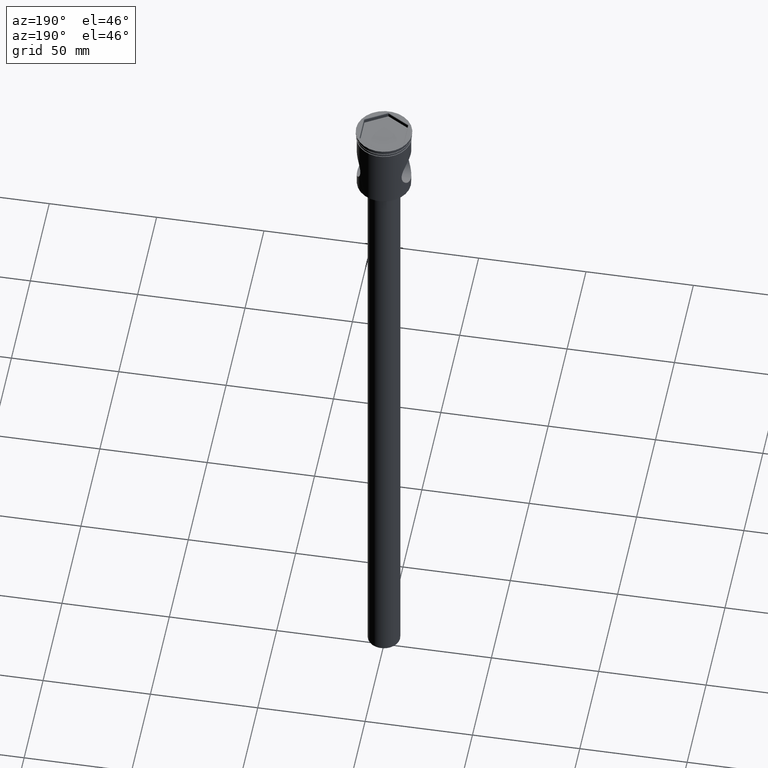
[diagram: clean part render]
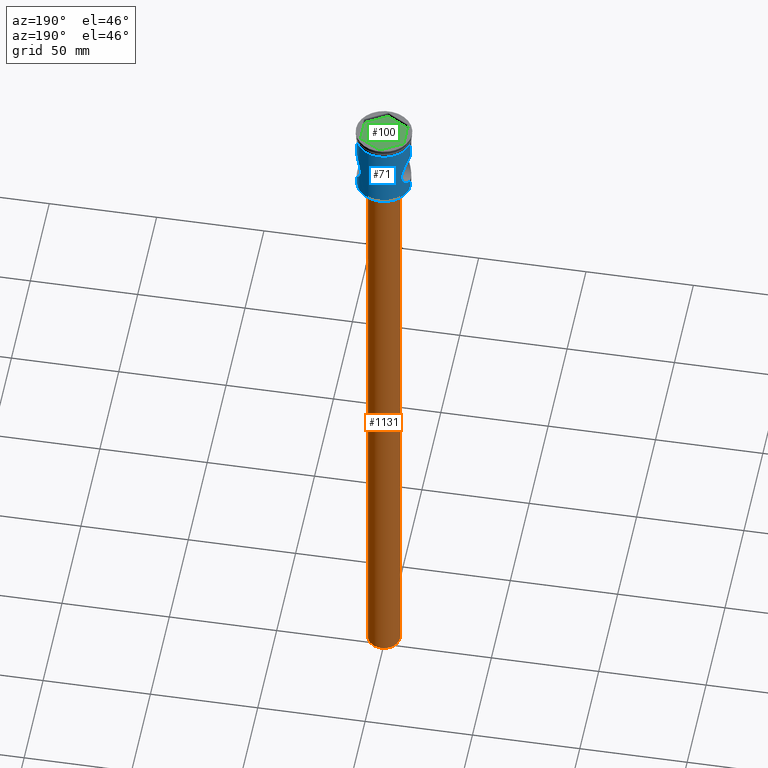
[diagram: same view with three faces highlighted in distinct colors, each labeled with its STEP entity id]
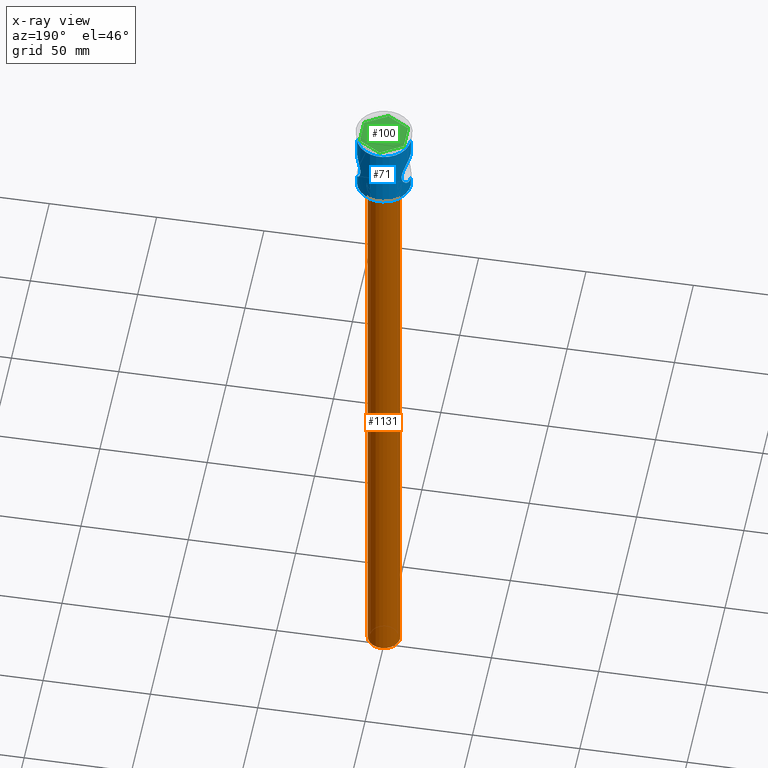
[diagram: x-ray of the same camera — body ghosted, the three highlighted faces saturated]
A machine part, auxiliary view with three faces highlighted in distinct colors.
The next image is the same camera in x-ray (body ghosted, the three faces saturated) — at least one of them is partly hidden behind the body in this view.
Their STEP definitions:

[orange] entity #1131 — the highlighted cylindrical surface (edge-blend (fillet) strip) has radius 7.5 mm, axis along (-0, -0, 1).
#34 = CYLINDRICAL_SURFACE ( 'NONE', #744, 7.500000000000000000 ) ;
#82 = CARTESIAN_POINT ( 'NONE',  ( 7.500000000000000000, 0.000000000000000000, -333.5000000000000000 ) ) ;
#125 = DIRECTION ( 'NONE',  ( -1.000000000000000000, 0.000000000000000000, 0.000000000000000000 ) ) ;
#140 = CARTESIAN_POINT ( 'NONE',  ( -7.500000000000000000, 9.184850993605147944E-16, -333.5000000000000000 ) ) ;
#146 = FACE_OUTER_BOUND ( 'NONE', #1021, .T. ) ;
#152 = LINE ( 'NONE', #403, #370 ) ;
#201 = LINE ( 'NONE', #82, #1546 ) ;
#370 = VECTOR ( 'NONE', #1352, 1000.000000000000000 ) ;
#403 = CARTESIAN_POINT ( 'NONE',  ( -7.500000000000000000, 9.184850993605147944E-16, -333.5000000000000000 ) ) ;
#440 = EDGE_CURVE ( 'NONE', #910, #1409, #452, .T. ) ;
#452 = CIRCLE ( 'NONE', #496, 7.500000000000000000 ) ;
#496 = AXIS2_PLACEMENT_3D ( 'NONE', #1257, #884, #1496 ) ;
#527 = ORIENTED_EDGE ( 'NONE', *, *, #1397, .T. ) ;
#641 = CARTESIAN_POINT ( 'NONE',  ( 7.500000000000000000, 0.000000000000000000, -333.5000000000000000 ) ) ;
#661 = CIRCLE ( 'NONE', #1484, 7.500000000000000000 ) ;
#687 = ORIENTED_EDGE ( 'NONE', *, *, #440, .F. ) ;
#744 = AXIS2_PLACEMENT_3D ( 'NONE', #986, #747, #867 ) ;
#747 = DIRECTION ( 'NONE',  ( -0.000000000000000000, -0.000000000000000000, 1.000000000000000000 ) ) ;
#828 = EDGE_CURVE ( 'NONE', #910, #1551, #152, .T. ) ;
#867 = DIRECTION ( 'NONE',  ( 1.000000000000000000, 0.000000000000000000, 0.000000000000000000 ) ) ;
#884 = DIRECTION ( 'NONE',  ( 0.000000000000000000, 0.000000000000000000, -1.000000000000000000 ) ) ;
#910 = VERTEX_POINT ( 'NONE', #140 ) ;
#986 = CARTESIAN_POINT ( 'NONE',  ( 0.000000000000000000, 0.000000000000000000, -333.5000000000000000 ) ) ;
#1004 = VERTEX_POINT ( 'NONE', #1506 ) ;
#1021 = EDGE_LOOP ( 'NONE', ( #687, #1198, #527, #1184 ) ) ;
#1060 = CARTESIAN_POINT ( 'NONE',  ( 0.000000000000000000, 0.000000000000000000, -36.50000000000000711 ) ) ;
#1131 = ADVANCED_FACE ( 'NONE', ( #146 ), #34, .T. ) ;
#1172 = CARTESIAN_POINT ( 'NONE',  ( -7.500000000000000000, 9.184850993605147944E-16, -36.50000000000000711 ) ) ;
#1184 = ORIENTED_EDGE ( 'NONE', *, *, #1359, .F. ) ;
#1195 = DIRECTION ( 'NONE',  ( 0.000000000000000000, 0.000000000000000000, -1.000000000000000000 ) ) ;
#1198 = ORIENTED_EDGE ( 'NONE', *, *, #828, .T. ) ;
#1257 = CARTESIAN_POINT ( 'NONE',  ( 0.000000000000000000, 0.000000000000000000, -333.5000000000000000 ) ) ;
#1292 = DIRECTION ( 'NONE',  ( -0.000000000000000000, -0.000000000000000000, 1.000000000000000000 ) ) ;
#1352 = DIRECTION ( 'NONE',  ( -0.000000000000000000, -0.000000000000000000, 1.000000000000000000 ) ) ;
#1359 = EDGE_CURVE ( 'NONE', #1409, #1004, #201, .T. ) ;
#1397 = EDGE_CURVE ( 'NONE', #1551, #1004, #661, .T. ) ;
#1409 = VERTEX_POINT ( 'NONE', #641 ) ;
#1484 = AXIS2_PLACEMENT_3D ( 'NONE', #1060, #1195, #125 ) ;
#1496 = DIRECTION ( 'NONE',  ( -1.000000000000000000, 0.000000000000000000, 0.000000000000000000 ) ) ;
#1506 = CARTESIAN_POINT ( 'NONE',  ( 7.500000000000000000, 0.000000000000000000, -36.50000000000000711 ) ) ;
#1546 = VECTOR ( 'NONE', #1292, 1000.000000000000000 ) ;
#1551 = VERTEX_POINT ( 'NONE', #1172 ) ;

[blue] entity #71 — the highlighted cylindrical surface (edge-blend (fillet) strip) has radius 12.5 mm, axis along (-0, -0, 1).
#7 = CARTESIAN_POINT ( 'NONE',  ( -10.02253038761470982, 7.470924704462464483, -23.37288695449094433 ) ) ;
#70 = CARTESIAN_POINT ( 'NONE',  ( -11.49685725809058567, 4.911092195449596076, -14.17966420493785051 ) ) ;
#71 = ADVANCED_FACE ( 'NONE', ( #991 ), #733, .T. ) ;
#77 = CARTESIAN_POINT ( 'NONE',  ( -10.24171529436143402, 7.170737983946684935, -16.91536847051583692 ) ) ;
#83 = CARTESIAN_POINT ( 'NONE',  ( -9.604607193058786407, 8.000095042092121744, -20.76536489131949992 ) ) ;
#102 = CARTESIAN_POINT ( 'NONE',  ( -10.77171733329285530, 6.344673314144587017, -25.37958406506655251 ) ) ;
#109 = CARTESIAN_POINT ( 'NONE',  ( 12.49132987171840270, 0.5383245889663403894, -12.51352599534948418 ) ) ;
#119 = CARTESIAN_POINT ( 'NONE',  ( 9.650015180279874372, 7.946443617263751591, -19.43182631452544484 ) ) ;
#120 = CARTESIAN_POINT ( 'NONE',  ( 12.46447579769007774, 1.079199628273470157, -28.44481018307721243 ) ) ;
#122 = VERTEX_POINT ( 'NONE', #1120 ) ;
#124 = ORIENTED_EDGE ( 'NONE', *, *, #1267, .F. ) ;
#143 = DIRECTION ( 'NONE',  ( 1.000000000000000000, 0.000000000000000000, 0.000000000000000000 ) ) ;
#145 = ORIENTED_EDGE ( 'NONE', *, *, #644, .F. ) ;
#161 = CARTESIAN_POINT ( 'NONE',  ( 11.83084558445469980, 4.061114290533304860, -27.41204444593460821 ) ) ;
#163 = AXIS2_PLACEMENT_3D ( 'NONE', #1212, #1002, #143 ) ;
#166 = DIRECTION ( 'NONE',  ( -0.000000000000000000, -0.000000000000000000, 1.000000000000000000 ) ) ;
#195 = CARTESIAN_POINT ( 'NONE',  ( -10.76964293615448653, 6.354292206984882618, -15.61311065325000591 ) ) ;
#202 = CARTESIAN_POINT ( 'NONE',  ( -9.823930086259025529, 7.730428572254550268, -18.37155159375936719 ) ) ;
#205 = CARTESIAN_POINT ( 'NONE',  ( -12.32814927920563264, 2.133064077394900337, -12.77081634138414401 ) ) ;
#222 = DIRECTION ( 'NONE',  ( -0.000000000000000000, -0.000000000000000000, 1.000000000000000000 ) ) ;
#230 = LINE ( 'NONE', #1294, #911 ) ;
#258 = ORIENTED_EDGE ( 'NONE', *, *, #904, .F. ) ;
#262 = CARTESIAN_POINT ( 'NONE',  ( 9.951847861737379120, 7.567903109691757280, -23.14472692481474425 ) ) ;
#274 = AXIS2_PLACEMENT_3D ( 'NONE', #1387, #683, #390 ) ;
#277 = CARTESIAN_POINT ( 'NONE',  ( 12.49999999999999289, 0.5455086926773380362, -28.50000000000000000 ) ) ;
#318 = VECTOR ( 'NONE', #805, 1000.000000000000000 ) ;
#326 = LINE ( 'NONE', #483, #318 ) ;
#327 = CARTESIAN_POINT ( 'NONE',  ( -12.49999999999999822, 0.2686376769289312016, -12.50000000000000533 ) ) ;
#336 = CARTESIAN_POINT ( 'NONE',  ( -11.74602063590885059, 4.281685285502878635, -13.73737400827888422 ) ) ;
#341 = CARTESIAN_POINT ( 'NONE',  ( -12.49999999999999645, 0.000000000000000000, -28.50000000000000355 ) ) ;
#351 = CARTESIAN_POINT ( 'NONE',  ( -11.82492588981186543, 4.059453444830931623, -27.39848256787114167 ) ) ;
#361 = EDGE_CURVE ( 'NONE', #1413, #769, #505, .T. ) ;
#363 = CARTESIAN_POINT ( 'NONE',  ( -12.42914744973298191, 1.355224675475571683, -28.38894657095907803 ) ) ;
#368 = CARTESIAN_POINT ( 'NONE',  ( 10.77326865999855166, 6.342037053953381687, -25.38299917530804350 ) ) ;
#374 = CARTESIAN_POINT ( 'NONE',  ( -12.45574482229450020, 1.085222749987466040, -28.43070192023093412 ) ) ;
#385 = CARTESIAN_POINT ( 'NONE',  ( 12.45636595211378861, 1.077990071471292666, -12.56832314098377346 ) ) ;
#390 = DIRECTION ( 'NONE',  ( 1.000000000000000000, 0.000000000000000000, 0.000000000000000000 ) ) ;
#401 = B_SPLINE_CURVE_WITH_KNOTS ( 'NONE', 3,
 ( #1201, #277, #120, #1442, #596, #1226, #161, #633, #959, #511, #1074, #368, #721, #610, #494, #262, #972, #1457, #858, #1335, #1094, #982, #119, #1351, #970, #1073, #1199, #493, #548, #799, #922, #691, #1282, #1091, #870, #699, #1433, #980, #719, #607, #385, #109, #1330, #860 ),
 .UNSPECIFIED., .F., .F.,
 ( 4, 2, 2, 2, 2, 2, 2, 2, 2, 2, 2, 2, 2, 2, 2, 2, 2, 2, 2, 2, 2, 4 ),
 ( 0.000000000000000000, 0.001610624516364215879, 0.003221249032728431758, 0.004831873549092647636, 0.006442498065456863515, 0.007247810323638976225, 0.008053122581821088935, 0.009663747098185310885, 0.01127437161454953631, 0.01207968387273164815, 0.01288499613091376172, 0.01449562064727799755, 0.01530093290546011807, 0.01610624516364224379, 0.01771686968000649870, 0.01932749419637075361, 0.02093811871273501199, 0.02174343097091713944, 0.02254874322909926690, 0.02415936774546352528, 0.02496468000364565273, 0.02576999226182778019 ),
 .UNSPECIFIED. ) ;
#402 = CARTESIAN_POINT ( 'NONE',  ( -12.49999999999999645, 1.530843252841608374E-15, -12.50000000000000178 ) ) ;
#441 = CARTESIAN_POINT ( 'NONE',  ( -12.22865895483605314, 2.638290072440495848, -12.92921996348514924 ) ) ;
#449 = CARTESIAN_POINT ( 'NONE',  ( -11.97168173856675466, 3.603696557166357284, -13.35287981243517308 ) ) ;
#459 = CARTESIAN_POINT ( 'NONE',  ( -12.43066710745117298, 1.341388092945101862, -12.60866053316501834 ) ) ;
#466 = CARTESIAN_POINT ( 'NONE',  ( -11.49979938796715118, 4.920626020369353704, -26.82866744699284567 ) ) ;
#474 = CARTESIAN_POINT ( 'NONE',  ( -10.68057655226026803, 6.496405684036826500, -25.17560278568680943 ) ) ;
#483 = CARTESIAN_POINT ( 'NONE',  ( -12.49999999999999645, 1.530808498934191127E-15, 0.000000000000000000 ) ) ;
#493 = CARTESIAN_POINT ( 'NONE',  ( 10.24149294623592965, 7.171072586796541692, -16.91585289741309595 ) ) ;
#494 = CARTESIAN_POINT ( 'NONE',  ( 10.24633185769106802, 7.164154995734958398, -24.09758546550434488 ) ) ;
#500 = CARTESIAN_POINT ( 'NONE',  ( -9.694572521403607368, 7.891132293869996595, -21.84205955273028010 ) ) ;
#505 = LINE ( 'NONE', #729, #1287 ) ;
#511 = CARTESIAN_POINT ( 'NONE',  ( 11.04973041360231534, 5.847541344671410180, -25.96539333561140950 ) ) ;
#525 = EDGE_CURVE ( 'NONE', #564, #812, #326, .T. ) ;
#548 = CARTESIAN_POINT ( 'NONE',  ( 10.41350288148657377, 6.922544769963280054, -16.45796141815630520 ) ) ;
#553 = CARTESIAN_POINT ( 'NONE',  ( -9.615781582082339796, 7.986738915949612938, -21.03451077291008531 ) ) ;
#559 = VECTOR ( 'NONE', #1228, 1000.000000000000000 ) ;
#564 = VERTEX_POINT ( 'NONE', #402 ) ;
#574 = CARTESIAN_POINT ( 'NONE',  ( 12.49999999999999645, 0.000000000000000000, -33.29999999999999716 ) ) ;
#575 = CARTESIAN_POINT ( 'NONE',  ( -11.97255694559601125, 3.600821400007697459, -27.64858792036709545 ) ) ;
#593 = CARTESIAN_POINT ( 'NONE',  ( -9.780592607289706919, 7.784260626568318742, -22.36450508717212671 ) ) ;
#596 = CARTESIAN_POINT ( 'NONE',  ( 12.22805391727019675, 2.640680350465369308, -28.06978779834291515 ) ) ;
#604 = CARTESIAN_POINT ( 'NONE',  ( -12.22681975302657520, 2.645907749991195601, -28.06777968347508434 ) ) ;
#607 = CARTESIAN_POINT ( 'NONE',  ( 12.43000214087199851, 1.347259841825428239, -12.60970857887207153 ) ) ;
#610 = CARTESIAN_POINT ( 'NONE',  ( 10.41453676133786033, 6.920961814154462211, -24.54462048307798128 ) ) ;
#615 = CARTESIAN_POINT ( 'NONE',  ( 12.49999999999999645, -3.475392982267206074E-20, -12.50000000000000178 ) ) ;
#633 = CARTESIAN_POINT ( 'NONE',  ( 11.50038868166273787, 4.919615502726670364, -26.82980181432884237 ) ) ;
#638 = EDGE_LOOP ( 'NONE', ( #1102, #1304, #145, #1056, #258, #927, #1288, #124 ) ) ;
#644 = EDGE_CURVE ( 'NONE', #564, #769, #763, .T. ) ;
#656 = CARTESIAN_POINT ( 'NONE',  ( -11.58231855636714513, 4.706562070356852701, -14.02588132130155962 ) ) ;
#668 = CARTESIAN_POINT ( 'NONE',  ( -9.650481006454381117, 7.945901119098953025, -19.42646661241498052 ) ) ;
#670 = EDGE_CURVE ( 'NONE', #1121, #1538, #230, .T. ) ;
#675 = CARTESIAN_POINT ( 'NONE',  ( -12.04102128605738464, 3.365482873782087658, -13.23757297846051451 ) ) ;
#683 = DIRECTION ( 'NONE',  ( -0.000000000000000000, -0.000000000000000000, 1.000000000000000000 ) ) ;
#690 = CARTESIAN_POINT ( 'NONE',  ( -12.49999999999999645, 0.2724455289350976028, -28.50000000000000000 ) ) ;
#691 = CARTESIAN_POINT ( 'NONE',  ( 11.32358097886961446, 5.309510908151877651, -14.49404386253077881 ) ) ;
#699 = CARTESIAN_POINT ( 'NONE',  ( 11.97039897339418246, 3.607881330226543781, -13.35503377591462559 ) ) ;
#719 = CARTESIAN_POINT ( 'NONE',  ( 12.32774079225238495, 2.134726252461476292, -12.77147006255823136 ) ) ;
#721 = CARTESIAN_POINT ( 'NONE',  ( 10.68141965030587848, 6.495024738260809727, -25.17753358840528932 ) ) ;
#724 = CARTESIAN_POINT ( 'NONE',  ( 12.50000000000000000, 0.000000000000000000, -3.999999999999996447 ) ) ;
#728 = CARTESIAN_POINT ( 'NONE',  ( -12.04078069653766647, 3.366168072378722620, -27.76202050384523190 ) ) ;
#729 = CARTESIAN_POINT ( 'NONE',  ( -12.49999999999999645, 1.530808498934191127E-15, 0.000000000000000000 ) ) ;
#733 = CYLINDRICAL_SURFACE ( 'NONE', #163, 12.49999999999999645 ) ;
#762 = CARTESIAN_POINT ( 'NONE',  ( -12.50000000000000000, 1.530808498934191521E-15, -3.999999999999996447 ) ) ;
#763 = B_SPLINE_CURVE_WITH_KNOTS ( 'NONE', 3,
 ( #1515, #327, #1525, #908, #459, #205, #441, #675, #449, #929, #336, #656, #70, #903, #1385, #788, #195, #1147, #77, #795, #202, #668, #1152, #83, #553, #1030, #500, #593, #1071, #823, #7, #1536, #954, #474, #102, #1448, #1439, #942, #466, #1054, #351, #575, #728, #604, #1180, #363, #374, #839, #690, #341 ),
 .UNSPECIFIED., .F., .F.,
 ( 4, 2, 2, 2, 2, 2, 2, 2, 2, 2, 2, 2, 2, 2, 2, 2, 2, 2, 2, 2, 2, 2, 2, 2, 4 ),
 ( 0.02576999226182778366, 0.02657439273090745832, 0.02737879319998713298, 0.02898759413814647884, 0.02979199460722615350, 0.03059639507630582123, 0.03140079554538549589, 0.03220519601446516361, 0.03381399695262450600, 0.03542279789078384145, 0.03703159882894318383, 0.03864039976710252622, 0.03944480023618218700, 0.04024920070526185473, 0.04105360117434152245, 0.04185800164342118324, 0.04346680258158051868, 0.04427120305066018641, 0.04507560351973985413, 0.04668440445789921039, 0.04748880492697887812, 0.04829320539605855278, 0.04990200633421790211, 0.05070640680329757677, 0.05151080727237725143 ),
 .UNSPECIFIED. ) ;
#769 = VERTEX_POINT ( 'NONE', #1426 ) ;
#788 = CARTESIAN_POINT ( 'NONE',  ( -10.95468395994246968, 6.033861169773390820, -15.22247198273765179 ) ) ;
#795 = CARTESIAN_POINT ( 'NONE',  ( -9.947500648090192854, 7.573601934444265105, -17.87138436146137366 ) ) ;
#799 = CARTESIAN_POINT ( 'NONE',  ( 10.77000853576665840, 6.353706358841936463, -15.61224821672883678 ) ) ;
#805 = DIRECTION ( 'NONE',  ( -0.000000000000000000, -0.000000000000000000, 1.000000000000000000 ) ) ;
#812 = VERTEX_POINT ( 'NONE', #762 ) ;
#823 = CARTESIAN_POINT ( 'NONE',  ( -9.953764986108037505, 7.561899278404374591, -23.12434326371112192 ) ) ;
#839 = CARTESIAN_POINT ( 'NONE',  ( -12.49104983426664717, 0.5449417703514869427, -28.48603655335807261 ) ) ;
#854 = EDGE_CURVE ( 'NONE', #122, #1121, #401, .T. ) ;
#858 = CARTESIAN_POINT ( 'NONE',  ( 9.662429422409399393, 7.930242071786063995, -21.58801890745425212 ) ) ;
#860 = CARTESIAN_POINT ( 'NONE',  ( 12.49999999999999645, -3.475392982267206074E-20, -12.50000000000000178 ) ) ;
#870 = CARTESIAN_POINT ( 'NONE',  ( 11.82354718861211573, 4.063371894608730273, -13.60388813298232513 ) ) ;
#903 = CARTESIAN_POINT ( 'NONE',  ( -11.32051845556725489, 5.304942531477344403, -14.50641544213543455 ) ) ;
#904 = EDGE_CURVE ( 'NONE', #1538, #812, #1316, .T. ) ;
#908 = CARTESIAN_POINT ( 'NONE',  ( -12.45680753857803147, 1.072351860696458381, -12.56763034230890774 ) ) ;
#911 = VECTOR ( 'NONE', #222, 1000.000000000000000 ) ;
#914 = DIRECTION ( 'NONE',  ( -1.000000000000000000, 0.000000000000000000, 0.000000000000000000 ) ) ;
#922 = CARTESIAN_POINT ( 'NONE',  ( 10.95569943340932717, 6.032167288263485361, -15.22028665405100512 ) ) ;
#927 = ORIENTED_EDGE ( 'NONE', *, *, #670, .F. ) ;
#928 = DIRECTION ( 'NONE',  ( -0.000000000000000000, -0.000000000000000000, 1.000000000000000000 ) ) ;
#929 = CARTESIAN_POINT ( 'NONE',  ( -11.82426725651903610, 4.061341696050350336, -13.60264837205234301 ) ) ;
#942 = CARTESIAN_POINT ( 'NONE',  ( -11.32275814528974500, 5.311017539796694997, -26.50426606429732601 ) ) ;
#954 = CARTESIAN_POINT ( 'NONE',  ( -10.41397768299478166, 6.921782864204723218, -24.54315654720842232 ) ) ;
#959 = CARTESIAN_POINT ( 'NONE',  ( 11.32278361962054802, 5.310903790031502147, -26.50427824932999243 ) ) ;
#970 = CARTESIAN_POINT ( 'NONE',  ( 9.831927431485986801, 7.719646222588846030, -18.38418844340872127 ) ) ;
#972 = CARTESIAN_POINT ( 'NONE',  ( 9.825351555881612242, 7.728608913096384647, -22.63340818634064533 ) ) ;
#980 = CARTESIAN_POINT ( 'NONE',  ( 12.22838080166956054, 2.639999966342853277, -12.92964855857681350 ) ) ;
#982 = CARTESIAN_POINT ( 'NONE',  ( 9.604276544737977872, 8.000492014107765115, -19.96508625629939004 ) ) ;
#991 = FACE_OUTER_BOUND ( 'NONE', #638, .T. ) ;
#1002 = DIRECTION ( 'NONE',  ( -0.000000000000000000, -0.000000000000000000, 1.000000000000000000 ) ) ;
#1012 = CARTESIAN_POINT ( 'NONE',  ( -12.49999999999999645, 1.530808498934191127E-15, -33.29999999999999716 ) ) ;
#1030 = CARTESIAN_POINT ( 'NONE',  ( -9.660877953051818068, 7.932130301633682379, -21.57471352266809106 ) ) ;
#1054 = CARTESIAN_POINT ( 'NONE',  ( -11.74577852983650494, 4.282367724400621967, -27.26220930574858059 ) ) ;
#1056 = ORIENTED_EDGE ( 'NONE', *, *, #525, .T. ) ;
#1071 = CARTESIAN_POINT ( 'NONE',  ( -9.833011243020195025, 7.718267162390876734, -22.62081358739451176 ) ) ;
#1073 = CARTESIAN_POINT ( 'NONE',  ( 9.952560460729568348, 7.563483000275685875, -17.88020587650935056 ) ) ;
#1074 = CARTESIAN_POINT ( 'NONE',  ( 10.95759851502932669, 6.017955333637137194, -25.77724630296188479 ) ) ;
#1091 = CARTESIAN_POINT ( 'NONE',  ( 11.74563317290944831, 4.282692903467038903, -13.73805650301568093 ) ) ;
#1094 = CARTESIAN_POINT ( 'NONE',  ( 9.604895432773121300, 7.999748985399197210, -20.77841958597585403 ) ) ;
#1102 = ORIENTED_EDGE ( 'NONE', *, *, #1299, .T. ) ;
#1120 = CARTESIAN_POINT ( 'NONE',  ( 12.49999999999999645, 0.000000000000000000, -28.50000000000000355 ) ) ;
#1121 = VERTEX_POINT ( 'NONE', #615 ) ;
#1147 = CARTESIAN_POINT ( 'NONE',  ( -10.41381587689204302, 6.922042856426296353, -16.45722377159888694 ) ) ;
#1152 = CARTESIAN_POINT ( 'NONE',  ( -9.604845950803452936, 7.999808392904742327, -19.96072037956296086 ) ) ;
#1180 = CARTESIAN_POINT ( 'NONE',  ( -12.32614486164619372, 2.144181392186815138, -28.22599079984303927 ) ) ;
#1199 = CARTESIAN_POINT ( 'NONE',  ( 10.02037738876441253, 7.473797691934480625, -17.63469963449613331 ) ) ;
#1201 = CARTESIAN_POINT ( 'NONE',  ( 12.49999999999999645, 0.000000000000000000, -28.50000000000000355 ) ) ;
#1212 = CARTESIAN_POINT ( 'NONE',  ( 0.000000000000000000, 0.000000000000000000, 0.000000000000000000 ) ) ;
#1226 = CARTESIAN_POINT ( 'NONE',  ( 11.97893811598799729, 3.606041726093997646, -27.66040104288469692 ) ) ;
#1228 = DIRECTION ( 'NONE',  ( -0.000000000000000000, -0.000000000000000000, 1.000000000000000000 ) ) ;
#1243 = CIRCLE ( 'NONE', #1450, 12.49999999999999645 ) ;
#1267 = EDGE_CURVE ( 'NONE', #1509, #122, #1444, .T. ) ;
#1282 = CARTESIAN_POINT ( 'NONE',  ( 11.50119995780600846, 4.917095492503141152, -14.16884486330757120 ) ) ;
#1287 = VECTOR ( 'NONE', #166, 1000.000000000000000 ) ;
#1288 = ORIENTED_EDGE ( 'NONE', *, *, #854, .F. ) ;
#1294 = CARTESIAN_POINT ( 'NONE',  ( 12.49999999999999645, 0.000000000000000000, 0.000000000000000000 ) ) ;
#1299 = EDGE_CURVE ( 'NONE', #1509, #1413, #1243, .T. ) ;
#1304 = ORIENTED_EDGE ( 'NONE', *, *, #361, .T. ) ;
#1316 = CIRCLE ( 'NONE', #274, 12.50000000000000000 ) ;
#1330 = CARTESIAN_POINT ( 'NONE',  ( 12.49999999999999822, 0.2689421781267094524, -12.50000000000000178 ) ) ;
#1335 = CARTESIAN_POINT ( 'NONE',  ( 9.616846497738414712, 7.985458352474513966, -21.05224936486945353 ) ) ;
#1351 = CARTESIAN_POINT ( 'NONE',  ( 9.778867081615890910, 7.786427190026567580, -18.64438907348872476 ) ) ;
#1385 = CARTESIAN_POINT ( 'NONE',  ( -11.22925266099212571, 5.494954958430610326, -14.68017047912132789 ) ) ;
#1387 = CARTESIAN_POINT ( 'NONE',  ( 0.000000000000000000, 0.000000000000000000, -3.999999999999996447 ) ) ;
#1413 = VERTEX_POINT ( 'NONE', #1012 ) ;
#1426 = CARTESIAN_POINT ( 'NONE',  ( -12.49999999999999645, 0.000000000000000000, -28.50000000000000355 ) ) ;
#1433 = CARTESIAN_POINT ( 'NONE',  ( 12.03968295628938812, 3.370349911399050047, -13.23978673405736117 ) ) ;
#1439 = CARTESIAN_POINT ( 'NONE',  ( -11.04913184632836121, 5.848685773200739568, -25.96419292266337919 ) ) ;
#1442 = CARTESIAN_POINT ( 'NONE',  ( 12.32937529947440147, 2.124696089697953649, -28.23112845639077761 ) ) ;
#1444 = LINE ( 'NONE', #1502, #559 ) ;
#1448 = CARTESIAN_POINT ( 'NONE',  ( -10.95618371808392233, 6.020532543485914267, -25.77431588019686615 ) ) ;
#1450 = AXIS2_PLACEMENT_3D ( 'NONE', #1535, #928, #914 ) ;
#1457 = CARTESIAN_POINT ( 'NONE',  ( 9.695983281617307270, 7.889400511741192723, -21.85205995452213301 ) ) ;
#1502 = CARTESIAN_POINT ( 'NONE',  ( 12.49999999999999645, 0.000000000000000000, 0.000000000000000000 ) ) ;
#1509 = VERTEX_POINT ( 'NONE', #574 ) ;
#1515 = CARTESIAN_POINT ( 'NONE',  ( -12.49999999999999645, 1.530843252841608374E-15, -12.50000000000000178 ) ) ;
#1525 = CARTESIAN_POINT ( 'NONE',  ( -12.49134899006260824, 0.5368360781239408519, -12.51349676487751594 ) ) ;
#1535 = CARTESIAN_POINT ( 'NONE',  ( 0.000000000000000000, 0.000000000000000000, -33.29999999999999716 ) ) ;
#1536 = CARTESIAN_POINT ( 'NONE',  ( -10.24506394556385125, 7.166030281330027840, -24.09455026104629738 ) ) ;
#1538 = VERTEX_POINT ( 'NONE', #724 ) ;

[green] entity #100 — the highlighted planar face has unit normal (-0, 0, 1).
#11 = VERTEX_POINT ( 'NONE', #524 ) ;
#43 = DIRECTION ( 'NONE',  ( -0.8660254037844387076, -0.4999999999999999445, 0.000000000000000000 ) ) ;
#96 = CARTESIAN_POINT ( 'NONE',  ( 0.000000000000000000, 0.000000000000000000, -2.000000000000000000 ) ) ;
#100 = ADVANCED_FACE ( 'NONE', ( #214 ), #1162, .T. ) ;
#188 = EDGE_CURVE ( 'NONE', #1541, #643, #1386, .T. ) ;
#214 = FACE_OUTER_BOUND ( 'NONE', #381, .T. ) ;
#224 = CARTESIAN_POINT ( 'NONE',  ( 10.20000000000000284, 5.888972745734183611, -2.000000000000000000 ) ) ;
#249 = EDGE_CURVE ( 'NONE', #1129, #772, #1392, .T. ) ;
#275 = DIRECTION ( 'NONE',  ( 2.945714899484625339E-16, 1.000000000000000000, 0.000000000000000000 ) ) ;
#287 = ORIENTED_EDGE ( 'NONE', *, *, #188, .T. ) ;
#290 = EDGE_CURVE ( 'NONE', #772, #1437, #533, .T. ) ;
#297 = DIRECTION ( 'NONE',  ( 0.000000000000000000, -1.000000000000000000, 0.000000000000000000 ) ) ;
#346 = EDGE_CURVE ( 'NONE', #11, #1541, #1100, .T. ) ;
#349 = AXIS2_PLACEMENT_3D ( 'NONE', #96, #708, #569 ) ;
#353 = CARTESIAN_POINT ( 'NONE',  ( -8.673617379884035472E-16, -11.77794549146836367, -2.000000000000000000 ) ) ;
#381 = EDGE_LOOP ( 'NONE', ( #287, #702, #1300, #770, #1260, #1059 ) ) ;
#417 = DIRECTION ( 'NONE',  ( 0.8660254037844387076, -0.4999999999999998890, 0.000000000000000000 ) ) ;
#425 = CARTESIAN_POINT ( 'NONE',  ( 10.20000000000000284, 5.888972745734183611, -2.000000000000000000 ) ) ;
#431 = CARTESIAN_POINT ( 'NONE',  ( 1.734723475976807094E-15, 11.77794549146836367, -2.000000000000000000 ) ) ;
#432 = EDGE_CURVE ( 'NONE', #643, #1129, #717, .T. ) ;
#443 = CARTESIAN_POINT ( 'NONE',  ( -10.20000000000000107, 5.888972745734180059, -2.000000000000000000 ) ) ;
#464 = VECTOR ( 'NONE', #43, 999.9999999999998863 ) ;
#524 = CARTESIAN_POINT ( 'NONE',  ( 10.19999999999999929, -5.888972745734185388, -2.000000000000000000 ) ) ;
#533 = LINE ( 'NONE', #1005, #800 ) ;
#569 = DIRECTION ( 'NONE',  ( 1.000000000000000000, 0.000000000000000000, 0.000000000000000000 ) ) ;
#643 = VERTEX_POINT ( 'NONE', #431 ) ;
#702 = ORIENTED_EDGE ( 'NONE', *, *, #432, .T. ) ;
#708 = DIRECTION ( 'NONE',  ( -0.000000000000000000, 0.000000000000000000, 1.000000000000000000 ) ) ;
#717 = LINE ( 'NONE', #1349, #464 ) ;
#737 = CARTESIAN_POINT ( 'NONE',  ( -10.20000000000000107, 5.888972745734180059, -2.000000000000000000 ) ) ;
#770 = ORIENTED_EDGE ( 'NONE', *, *, #290, .T. ) ;
#772 = VERTEX_POINT ( 'NONE', #1067 ) ;
#800 = VECTOR ( 'NONE', #417, 1000.000000000000114 ) ;
#852 = CARTESIAN_POINT ( 'NONE',  ( 10.19999999999999929, -5.888972745734185388, -2.000000000000000000 ) ) ;
#874 = EDGE_CURVE ( 'NONE', #1437, #11, #1550, .T. ) ;
#957 = DIRECTION ( 'NONE',  ( 0.8660254037844388186, 0.4999999999999996669, 0.000000000000000000 ) ) ;
#1005 = CARTESIAN_POINT ( 'NONE',  ( -10.20000000000000107, -5.888972745734181835, -2.000000000000000000 ) ) ;
#1031 = DIRECTION ( 'NONE',  ( -0.8660254037844387076, 0.4999999999999997780, 0.000000000000000000 ) ) ;
#1059 = ORIENTED_EDGE ( 'NONE', *, *, #346, .T. ) ;
#1067 = CARTESIAN_POINT ( 'NONE',  ( -10.20000000000000107, -5.888972745734181835, -2.000000000000000000 ) ) ;
#1100 = LINE ( 'NONE', #852, #1137 ) ;
#1106 = VECTOR ( 'NONE', #297, 1000.000000000000000 ) ;
#1129 = VERTEX_POINT ( 'NONE', #737 ) ;
#1137 = VECTOR ( 'NONE', #275, 1000.000000000000000 ) ;
#1162 = PLANE ( 'NONE',  #349 ) ;
#1241 = VECTOR ( 'NONE', #957, 1000.000000000000000 ) ;
#1260 = ORIENTED_EDGE ( 'NONE', *, *, #874, .T. ) ;
#1300 = ORIENTED_EDGE ( 'NONE', *, *, #249, .T. ) ;
#1338 = VECTOR ( 'NONE', #1031, 1000.000000000000114 ) ;
#1349 = CARTESIAN_POINT ( 'NONE',  ( 1.734723475976807094E-15, 11.77794549146836367, -2.000000000000000000 ) ) ;
#1386 = LINE ( 'NONE', #425, #1338 ) ;
#1392 = LINE ( 'NONE', #443, #1106 ) ;
#1437 = VERTEX_POINT ( 'NONE', #1505 ) ;
#1505 = CARTESIAN_POINT ( 'NONE',  ( -8.673617379884035472E-16, -11.77794549146836367, -2.000000000000000000 ) ) ;
#1541 = VERTEX_POINT ( 'NONE', #224 ) ;
#1550 = LINE ( 'NONE', #353, #1241 ) ;